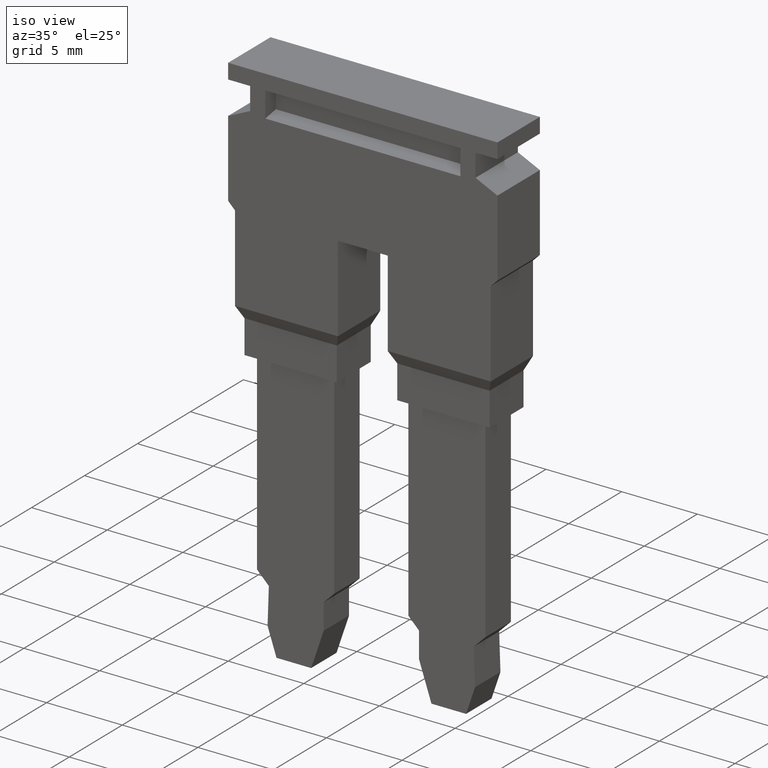
[diagram: clean part render]
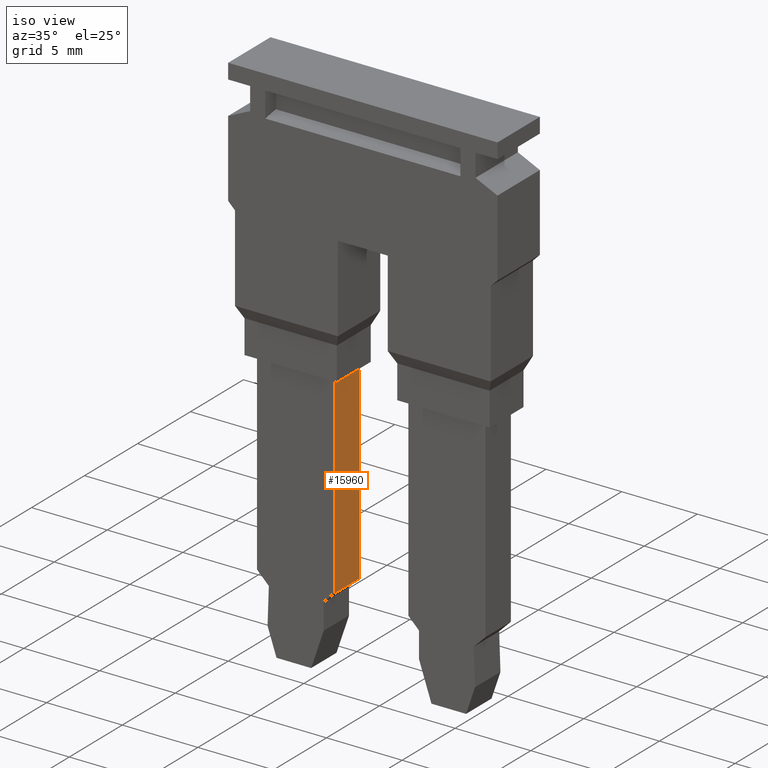
[diagram: same view with one face highlighted and labeled with its STEP entity id]
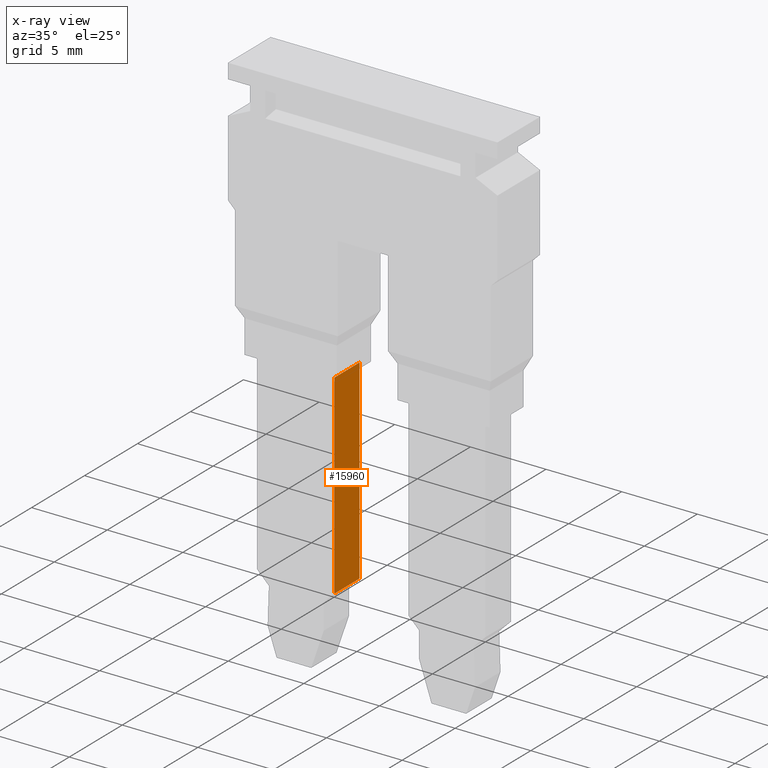
[diagram: x-ray of the same camera — body ghosted, the highlighted face saturated]
A machine part, iso view. The second image highlights one B-rep face of the part: STEP entity #15960.
The next image is the same camera in x-ray: the body ghosted, the highlighted face saturated — about 0% of this face is hidden behind the body in this view.
In plain terms, the highlighted planar face has unit normal (-1, -0, 0).
Its self-contained STEP definition (entity closure, byte-faithful):
#12770=CARTESIAN_POINT('',(-3.19999999977389,33.899474000019,
-2.44999999999989));
#12780=VERTEX_POINT('',#12770);
#12810=CARTESIAN_POINT('',(-2.3999999997739,33.8994740000365,
-2.44999999999989));
#12820=DIRECTION('',(1.,2.18677767191205E-11,-2.33486982379133E-16));
#12830=VECTOR('',#12820,1.);
#12840=LINE('',#12810,#12830);
#12850=CARTESIAN_POINT('',(-5.59999999977391,33.8994739999665,
-2.44999999999989));
#12860=VERTEX_POINT('',#12850);
#12870=EDGE_CURVE('',#12860,#12780,#12840,.T.);
#15010=CARTESIAN_POINT('',(-5.5999999998083,35.8654186231995,
-2.44999999999989));
#15020=DIRECTION('',(1.7492973788066E-11,-1.,-4.15479522033159E-16));
#15030=VECTOR('',#15020,1.);
#15040=LINE('',#15010,#15030);
#15050=CARTESIAN_POINT('',(-5.59999999954825,20.9994740000094,
-2.4499999999999));
#15060=VERTEX_POINT('',#15050);
#15070=EDGE_CURVE('',#12860,#15060,#15040,.T.);
#15730=CARTESIAN_POINT('',(-5.59999999980539,35.6994740000074,
-2.44999999999989));
#15740=DIRECTION('',(-2.3348698238768E-16,4.15479522031348E-16,-1.));
#15750=DIRECTION('',(-1.7492973788066E-11,1.,4.15479522035433E-16));
#15760=AXIS2_PLACEMENT_3D('',#15730,#15740,#15750);
#15770=PLANE('',#15760);
#15780=CARTESIAN_POINT('',(-2.4,20.9994740000654,-2.4499999999999));
#15790=DIRECTION('',(-1.,-1.7492973788066E-11,2.33486982379728E-16));
#15800=VECTOR('',#15790,1.);
#15810=LINE('',#15780,#15800);
#15820=CARTESIAN_POINT('',(-3.1999999995482,20.9994740000514,
-2.4499999999999));
#15830=VERTEX_POINT('',#15820);
#15840=EDGE_CURVE('',#15830,#15060,#15810,.T.);
#15850=ORIENTED_EDGE('',*,*,#15840,.F.);
#15860=ORIENTED_EDGE('',*,*,#15070,.T.);
#15870=ORIENTED_EDGE('',*,*,#12870,.F.);
#15880=CARTESIAN_POINT('',(-3.1999999991808,4.76774175695027E-11,
-2.44999999999991));
#15890=DIRECTION('',(-1.74953625171753E-11,1.,4.15479522035837E-16));
#15900=VECTOR('',#15890,1.);
#15910=LINE('',#15880,#15900);
#15920=EDGE_CURVE('',#15830,#12780,#15910,.T.);
#15930=ORIENTED_EDGE('',*,*,#15920,.T.);
#15940=EDGE_LOOP('',(#15930,#15870,#15860,#15850));
#15950=FACE_OUTER_BOUND('',#15940,.T.);
#15960=ADVANCED_FACE('',(#15950),#15770,.F.);